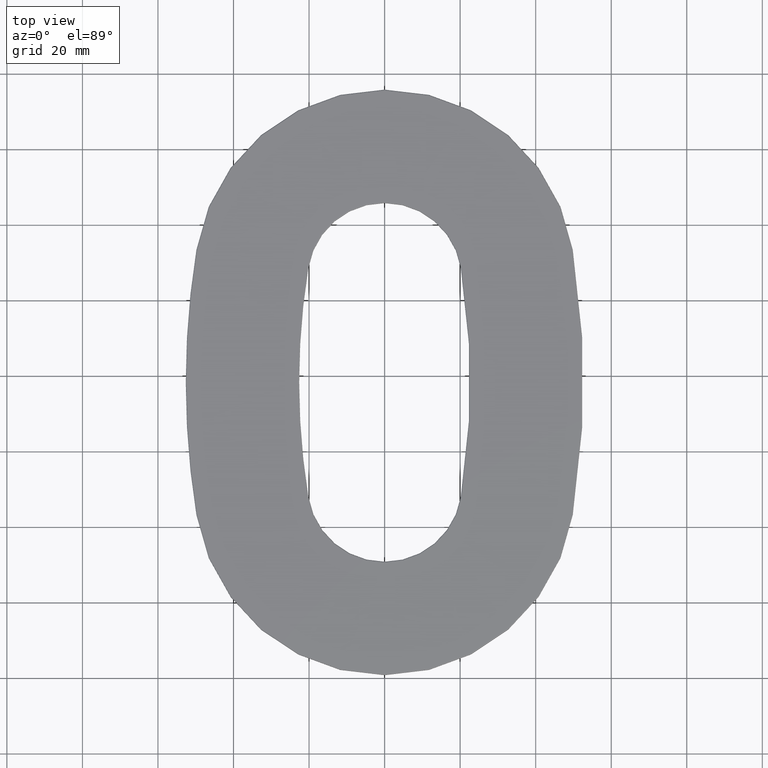
[diagram: clean part render]
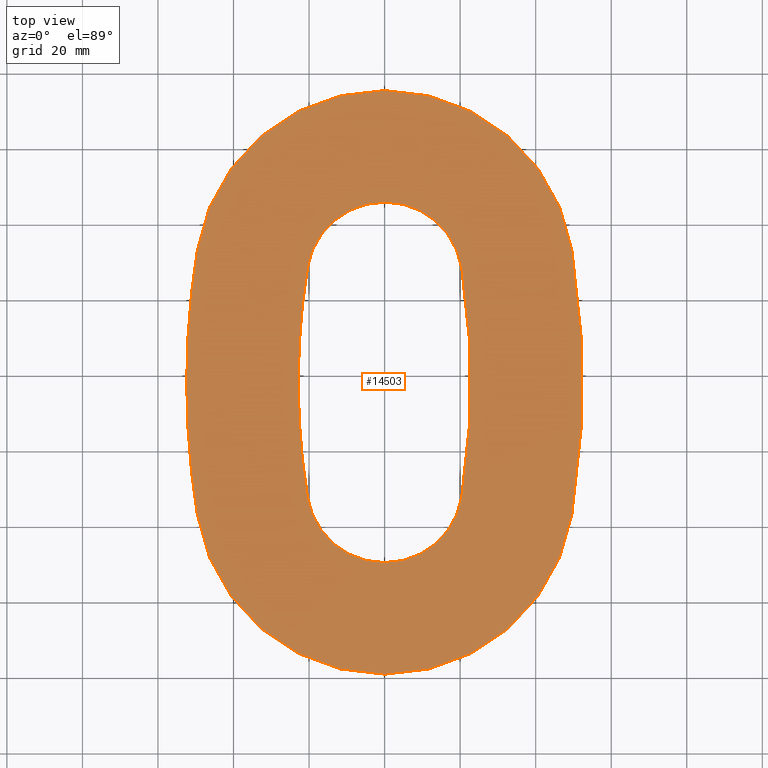
[diagram: same view with one face highlighted and labeled with its STEP entity id]
A machine part, top view. The second image highlights one B-rep face of the part: STEP entity #14503.
In plain terms, the highlighted planar face has unit normal (0, 0, -1).
Its self-contained STEP definition (entity closure, byte-faithful):
#150 = DIRECTION ( 'NONE',  ( -1.000000000000000000, 0.000000000000000000, 0.000000000000000000 ) ) ;
#243 = ORIENTED_EDGE ( 'NONE', *, *, #5723, .T. ) ;
#712 = AXIS2_PLACEMENT_3D ( 'NONE', #5737, #2826, #36030 ) ;
#738 = AXIS2_PLACEMENT_3D ( 'NONE', #4951, #26096, #8015 ) ;
#931 = EDGE_CURVE ( 'NONE', #14876, #35852, #7141, .T. ) ;
#1471 = AXIS2_PLACEMENT_3D ( 'NONE', #6374, #24084, #12094 ) ;
#2792 = VERTEX_POINT ( 'NONE', #36214 ) ;
#2826 = DIRECTION ( 'NONE',  ( -0.000000000000000000, -0.000000000000000000, -1.000000000000000000 ) ) ;
#3096 = DIRECTION ( 'NONE',  ( -0.000000000000000000, -0.000000000000000000, -1.000000000000000000 ) ) ;
#3204 = EDGE_CURVE ( 'NONE', #16773, #31587, #32567, .T. ) ;
#3361 = CARTESIAN_POINT ( 'NONE',  ( -49.55506058340321829, 112.5709706753754062, 2.000000000000000000 ) ) ;
#3566 = DIRECTION ( 'NONE',  ( -1.000000000000000000, 5.310983523410092189E-15, 0.000000000000000000 ) ) ;
#3736 = AXIS2_PLACEMENT_3D ( 'NONE', #32851, #20797, #5701 ) ;
#3797 = DIRECTION ( 'NONE',  ( -1.000000000000000000, 0.000000000000000000, 0.000000000000000000 ) ) ;
#3962 = VERTEX_POINT ( 'NONE', #17271 ) ;
#4055 = CARTESIAN_POINT ( 'NONE',  ( 20.43405884614434243, 107.8574520513997186, 2.000000000000000000 ) ) ;
#4951 = CARTESIAN_POINT ( 'NONE',  ( -83.55998563218251718, 63.97500000000000142, 2.000000000000000000 ) ) ;
#5396 = ORIENTED_EDGE ( 'NONE', *, *, #6253, .T. ) ;
#5701 = DIRECTION ( 'NONE',  ( -1.000000000000000000, 0.000000000000000000, 0.000000000000000000 ) ) ;
#5723 = EDGE_CURVE ( 'NONE', #35852, #35092, #23859, .T. ) ;
#5737 = CARTESIAN_POINT ( 'NONE',  ( 167.1199712643650344, 77.50000000000000000, 2.000000000000000000 ) ) ;
#5756 = ORIENTED_EDGE ( 'NONE', *, *, #3204, .T. ) ;
#5772 = DIRECTION ( 'NONE',  ( -1.000000000000000000, 3.540655682273395187E-15, 0.000000000000000000 ) ) ;
#6253 = EDGE_CURVE ( 'NONE', #17488, #29724, #36054, .T. ) ;
#6374 = CARTESIAN_POINT ( 'NONE',  ( 0.000000000000000000, 104.5499999999999972, 2.000000000000000000 ) ) ;
#6917 = AXIS2_PLACEMENT_3D ( 'NONE', #31784, #13773, #29150 ) ;
#7141 = CIRCLE ( 'NONE', #1471, 20.69999999999995310 ) ;
#7758 = AXIS2_PLACEMENT_3D ( 'NONE', #12729, #24481, #3566 ) ;
#8015 = DIRECTION ( 'NONE',  ( -1.000000000000000000, 0.000000000000000000, 0.000000000000000000 ) ) ;
#8862 = CIRCLE ( 'NONE', #3736, 20.69999999999998508 ) ;
#9160 = AXIS2_PLACEMENT_3D ( 'NONE', #9322, #21715, #150 ) ;
#9322 = CARTESIAN_POINT ( 'NONE',  ( 0.000000000000000000, 104.5499999999999972, 2.000000000000000000 ) ) ;
#10240 = CARTESIAN_POINT ( 'NONE',  ( -20.43405884614432821, 107.8574520513998038, 2.000000000000000000 ) ) ;
#11279 = FACE_BOUND ( 'NONE', #12161, .T. ) ;
#11426 = CIRCLE ( 'NONE', #38958, 219.4949712643650059 ) ;
#12094 = DIRECTION ( 'NONE',  ( -1.000000000000000000, 0.000000000000000000, 0.000000000000000000 ) ) ;
#12161 = EDGE_LOOP ( 'NONE', ( #22332, #5396, #32160, #18107, #243 ) ) ;
#12729 = CARTESIAN_POINT ( 'NONE',  ( -167.1199712643650344, 77.50000000000000000, 2.000000000000000000 ) ) ;
#13709 = PLANE ( 'NONE',  #738 ) ;
#13773 = DIRECTION ( 'NONE',  ( -0.000000000000000000, -0.000000000000000000, -1.000000000000000000 ) ) ;
#13856 = AXIS2_PLACEMENT_3D ( 'NONE', #30026, #27283, #5772 ) ;
#14503 = ADVANCED_FACE ( 'NONE', ( #11279, #28209 ), #13709, .F. ) ;
#14876 = VERTEX_POINT ( 'NONE', #10240 ) ;
#14955 = CIRCLE ( 'NONE', #712, 189.9949712643650059 ) ;
#15319 = DIRECTION ( 'NONE',  ( 0.000000000000000000, 0.000000000000000000, 1.000000000000000000 ) ) ;
#15775 = AXIS2_PLACEMENT_3D ( 'NONE', #33564, #3096, #18480 ) ;
#16679 = EDGE_CURVE ( 'NONE', #2792, #3962, #11426, .T. ) ;
#16773 = VERTEX_POINT ( 'NONE', #27813 ) ;
#17271 = CARTESIAN_POINT ( 'NONE',  ( -49.55506058340321118, 42.42902932462458665, 2.000000000000000000 ) ) ;
#17488 = VERTEX_POINT ( 'NONE', #31138 ) ;
#18020 = CARTESIAN_POINT ( 'NONE',  ( 167.1199712643650344, 77.50000000000000000, 2.000000000000000000 ) ) ;
#18107 = ORIENTED_EDGE ( 'NONE', *, *, #931, .T. ) ;
#18480 = DIRECTION ( 'NONE',  ( -1.000000000000000000, 0.000000000000000000, 0.000000000000000000 ) ) ;
#20092 = ORIENTED_EDGE ( 'NONE', *, *, #36772, .T. ) ;
#20797 = DIRECTION ( 'NONE',  ( -0.000000000000000000, -0.000000000000000000, -1.000000000000000000 ) ) ;
#21026 = DIRECTION ( 'NONE',  ( 0.000000000000000000, 0.000000000000000000, 1.000000000000000000 ) ) ;
#21138 = CARTESIAN_POINT ( 'NONE',  ( -22.87499999999997868, 77.50000000000000000, 2.000000000000000000 ) ) ;
#21715 = DIRECTION ( 'NONE',  ( 0.000000000000000000, 0.000000000000000000, 1.000000000000000000 ) ) ;
#21868 = ORIENTED_EDGE ( 'NONE', *, *, #36986, .T. ) ;
#22212 = CIRCLE ( 'NONE', #7758, 219.4949712643650344 ) ;
#22247 = AXIS2_PLACEMENT_3D ( 'NONE', #29924, #15319, #35973 ) ;
#22332 = ORIENTED_EDGE ( 'NONE', *, *, #22835, .T. ) ;
#22578 = EDGE_LOOP ( 'NONE', ( #21868, #37649, #29291, #20092, #5756 ) ) ;
#22835 = EDGE_CURVE ( 'NONE', #35092, #17488, #8862, .T. ) ;
#23859 = CIRCLE ( 'NONE', #6917, 189.9949712643650628 ) ;
#23924 = EDGE_CURVE ( 'NONE', #29724, #14876, #14955, .T. ) ;
#24084 = DIRECTION ( 'NONE',  ( -0.000000000000000000, -0.000000000000000000, -1.000000000000000000 ) ) ;
#24481 = DIRECTION ( 'NONE',  ( 0.000000000000000000, 0.000000000000000000, 1.000000000000000000 ) ) ;
#24781 = CARTESIAN_POINT ( 'NONE',  ( 20.43405884614435664, 47.14254794860016773, 2.000000000000000000 ) ) ;
#26096 = DIRECTION ( 'NONE',  ( -0.000000000000000000, 0.000000000000000000, -1.000000000000000000 ) ) ;
#27040 = VERTEX_POINT ( 'NONE', #27892 ) ;
#27251 = CIRCLE ( 'NONE', #22247, 50.19999999999995310 ) ;
#27283 = DIRECTION ( 'NONE',  ( 0.000000000000000000, 0.000000000000000000, 1.000000000000000000 ) ) ;
#27467 = EDGE_CURVE ( 'NONE', #3962, #27040, #27251, .T. ) ;
#27813 = CARTESIAN_POINT ( 'NONE',  ( 49.55506058340321118, 112.5709706753754347, 2.000000000000000000 ) ) ;
#27892 = CARTESIAN_POINT ( 'NONE',  ( 49.55506058340321118, 42.42902932462457244, 2.000000000000000000 ) ) ;
#28209 = FACE_OUTER_BOUND ( 'NONE', #22578, .T. ) ;
#29150 = DIRECTION ( 'NONE',  ( -1.000000000000000000, 0.000000000000000000, 0.000000000000000000 ) ) ;
#29291 = ORIENTED_EDGE ( 'NONE', *, *, #27467, .T. ) ;
#29724 = VERTEX_POINT ( 'NONE', #21138 ) ;
#29924 = CARTESIAN_POINT ( 'NONE',  ( 0.000000000000000000, 50.45000000000000284, 2.000000000000000000 ) ) ;
#30026 = CARTESIAN_POINT ( 'NONE',  ( 167.1199712643650344, 77.50000000000000000, 2.000000000000000000 ) ) ;
#31138 = CARTESIAN_POINT ( 'NONE',  ( -20.43405884614436729, 47.14254794860023878, 2.000000000000000000 ) ) ;
#31587 = VERTEX_POINT ( 'NONE', #3361 ) ;
#31784 = CARTESIAN_POINT ( 'NONE',  ( -167.1199712643650344, 77.50000000000000000, 2.000000000000000000 ) ) ;
#32160 = ORIENTED_EDGE ( 'NONE', *, *, #23924, .T. ) ;
#32567 = CIRCLE ( 'NONE', #9160, 50.19999999999995310 ) ;
#32851 = CARTESIAN_POINT ( 'NONE',  ( 0.000000000000000000, 50.45000000000000284, 2.000000000000000000 ) ) ;
#33564 = CARTESIAN_POINT ( 'NONE',  ( 167.1199712643650344, 77.50000000000000000, 2.000000000000000000 ) ) ;
#34871 = CIRCLE ( 'NONE', #13856, 219.4949712643650059 ) ;
#35092 = VERTEX_POINT ( 'NONE', #24781 ) ;
#35852 = VERTEX_POINT ( 'NONE', #4055 ) ;
#35973 = DIRECTION ( 'NONE',  ( -1.000000000000000000, 0.000000000000000000, 0.000000000000000000 ) ) ;
#36030 = DIRECTION ( 'NONE',  ( -1.000000000000000000, 0.000000000000000000, 0.000000000000000000 ) ) ;
#36054 = CIRCLE ( 'NONE', #15775, 189.9949712643650059 ) ;
#36214 = CARTESIAN_POINT ( 'NONE',  ( -52.37499999999997868, 77.50000000000000000, 2.000000000000000000 ) ) ;
#36772 = EDGE_CURVE ( 'NONE', #27040, #16773, #22212, .T. ) ;
#36986 = EDGE_CURVE ( 'NONE', #31587, #2792, #34871, .T. ) ;
#37649 = ORIENTED_EDGE ( 'NONE', *, *, #16679, .T. ) ;
#38958 = AXIS2_PLACEMENT_3D ( 'NONE', #18020, #21026, #3797 ) ;